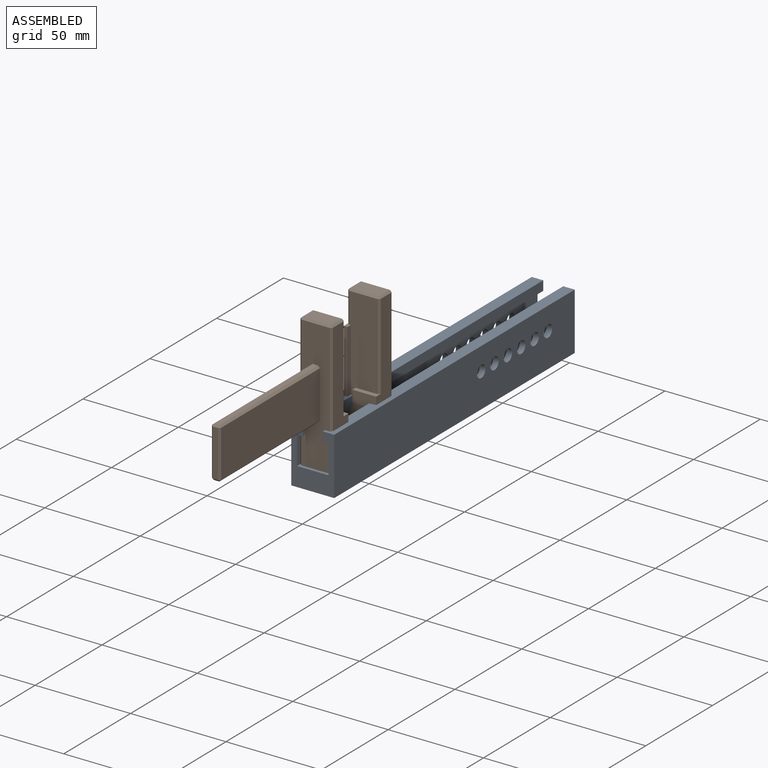
[diagram: assembled view]
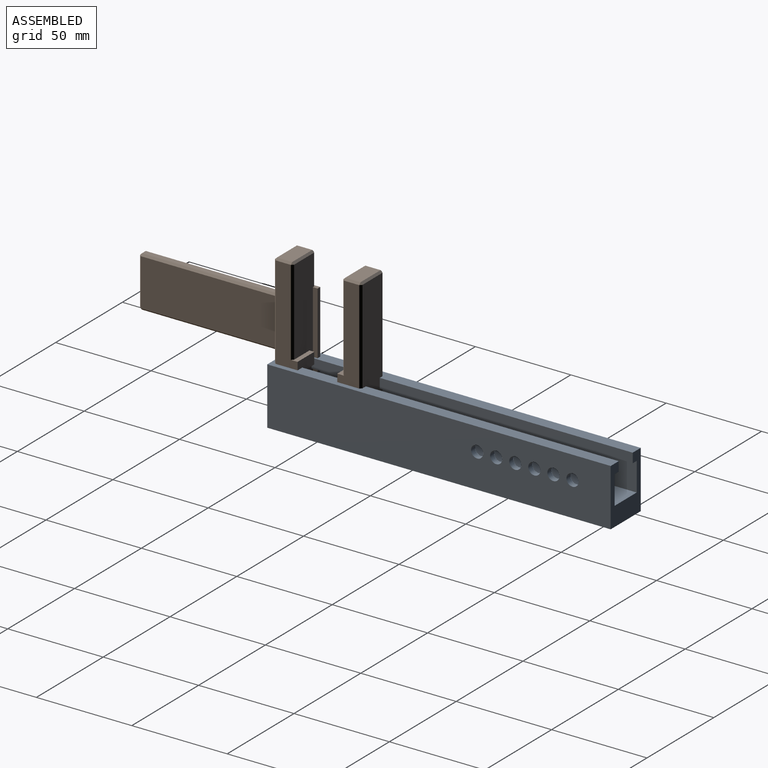
[diagram: assembled view, second angle]
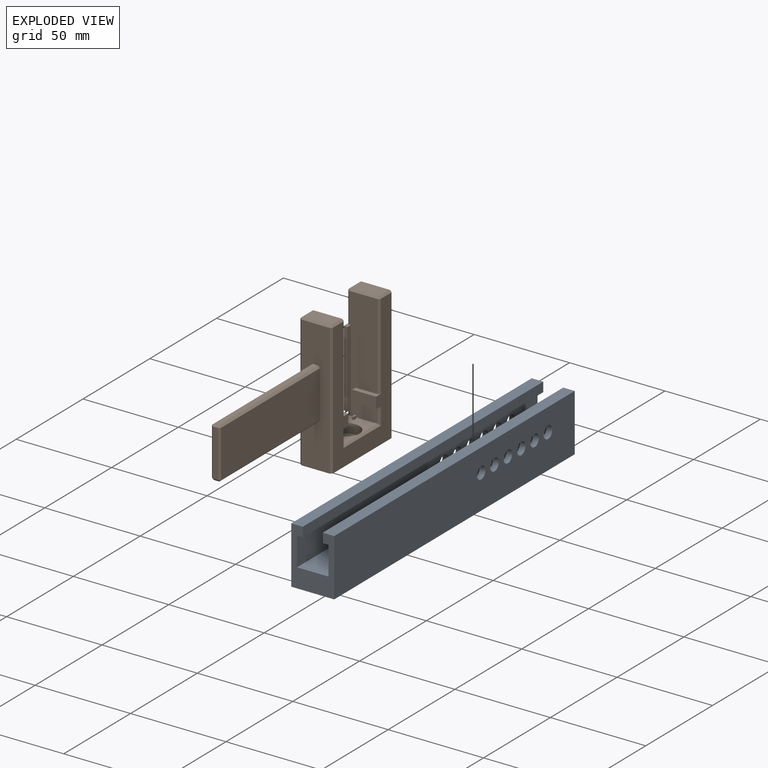
[diagram: exploded view]
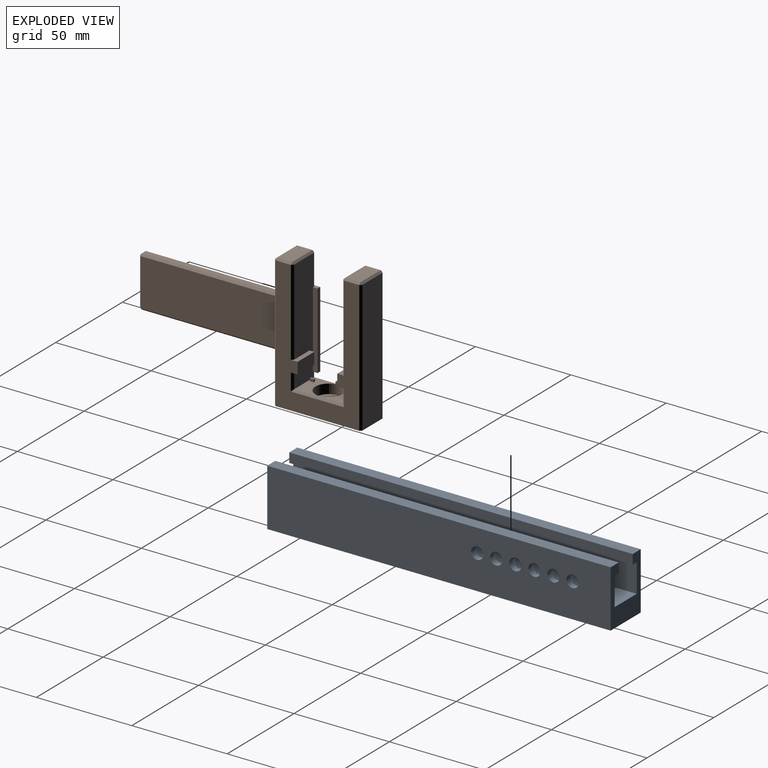
[diagram: exploded view, second angle]
ASSEMBLY  parts=2 mates=2
PART A: 32 faces, bbox 22.5x180x30 mm
  f0: plane 180x16.5mm, normal (0,0,1), area 2812.9mm2, adj f1,f11,f12,f13,f16,f31
  f1: plane 180x15mm, normal (1,0,0), area 2510mm2, adj f0,f2,f12,f13,f23,f24,f25,f26
  f2: plane 180x3mm, normal (0,0,-1), area 540mm2, adj f1,f3,f12,f13
  f3: plane 180x5mm, normal (1,0,0), area 900mm2, adj f2,f4,f12,f13
  f4: plane 180x6mm, normal (0,0,1), area 1080mm2, adj f3,f5,f12,f13
  f5: plane 180x30mm, normal (-1,0,0), area 5210mm2, adj f4,f6,f12,f13,f23,f24,f25,f26
  f6: plane 180x22.5mm, normal (0,0,-1), area 3978.3mm2, adj f5,f7,f12,f13,f14,f29
  f7: plane 180x30mm, normal (1,0,0), area 5210mm2, adj f6,f8,f12,f13,f17,f18,f19,f20
  f8: plane 180x6mm, normal (0,0,1), area 1080mm2, adj f7,f9,f12,f13
  f9: plane 180x5mm, normal (-1,0,0), area 900mm2, adj f8,f10,f12,f13
  f10: plane 180x3mm, normal (0,0,-1), area 540mm2, adj f9,f11,f12,f13
  f11: plane 180x15mm, normal (-1,0,0), area 2510mm2, adj f0,f10,f12,f13,f17,f18,f19,f20
  f12: plane 30x22.5mm, normal (0,1,0), area 375mm2, adj f0,f1,f2,f3,f4,f5,f6,f7
  f13: plane 30x22.5mm, normal (0,-1,0), area 375mm2, adj f0,f1,f2,f3,f4,f5,f6,f7
  f14: cylinder r=3.38mm len=6.76mm, axis (0,0,1), area 77.5mm2, adj f6,f15
  f15: plane 10x10mm, normal (0,0,1), area 42.7mm2, adj f14,f16
  f16: cylinder r=5mm len=10mm, axis (0,0,1), area 199.5mm2, adj f0,f15
  f17: cylinder r=3.17mm len=6.35mm, axis (1,0,0), area 59.8mm2, adj f7,f11
  f18: cylinder r=3.17mm len=6.35mm, axis (1,0,0), area 59.8mm2, adj f7,f11
  f19: cylinder r=3.17mm len=6.35mm, axis (1,0,0), area 59.8mm2, adj f7,f11
  f20: cylinder r=3.17mm len=6.35mm, axis (1,0,0), area 59.8mm2, adj f7,f11
  f21: cylinder r=3.17mm len=6.35mm, axis (1,0,0), area 59.8mm2, adj f7,f11
  f22: cylinder r=3.17mm len=6.35mm, axis (1,0,0), area 59.8mm2, adj f7,f11
  f23: cylinder r=3.17mm len=6.35mm, axis (1,0,0), area 59.8mm2, adj f1,f5
  f24: cylinder r=3.17mm len=6.35mm, axis (1,0,0), area 59.8mm2, adj f1,f5
  f25: cylinder r=3.17mm len=6.35mm, axis (1,0,0), area 59.8mm2, adj f1,f5
  f26: cylinder r=3.17mm len=6.35mm, axis (1,0,0), area 59.8mm2, adj f1,f5
  f27: cylinder r=3.17mm len=6.35mm, axis (1,0,0), area 59.8mm2, adj f1,f5
  f28: cylinder r=3.17mm len=6.35mm, axis (1,0,0), area 59.8mm2, adj f1,f5
  f29: cylinder r=3.38mm len=6.76mm, axis (0,0,1), area 77.5mm2, adj f6,f30
  f30: plane 10x10mm, normal (0,0,1), area 42.7mm2, adj f29,f31
  f31: cylinder r=5mm len=10mm, axis (0,0,1), area 199.5mm2, adj f0,f30
PART B: 92 faces, bbox 17x120.8x70 mm
  f0: plane 25.8x15mm, normal (0,0,1), area 228mm2, adj f4,f5,f31,f33,f35,f36,f37,f38
  f1: plane 69x15mm, normal (0,-1,0), area 908mm2, adj f7,f26,f27,f28,f29,f45,f47,f50
  f2: plane 69x15mm, normal (0,1,0), area 1035mm2, adj f7,f69,f71,f72
  f3: plane 15x8mm, normal (0,0,1), area 120mm2, adj f72,f73,f77,f78
  f4: plane 59x15mm, normal (0,-1,0), area 776mm2, adj f0,f18,f19,f20,f22,f23,f24,f74
  f5: plane 59x15mm, normal (0,1,0), area 776mm2, adj f0,f10,f11,f12,f14,f15,f16,f57
  f6: plane 15x8mm, normal (0,0,1), area 120mm2, adj f60,f61,f65,f66
  f7: plane 45.8x17mm, normal (0,0,-1), area 740.7mm2, adj f1,f2,f8,f9,f62,f68,f69,f71
  f8: plane 69x43.8mm, normal (-1,0,0), area 1639.2mm2, adj f7,f10,f11,f13,f22,f23,f25,f31
  f9: plane 69x43.8mm, normal (1,0,0), area 1396.2mm2, adj f7,f14,f16,f17,f18,f19,f21,f57
  f10: plane 3.5x2mm, normal (0,0,-1), area 5.5mm2, adj f5,f8,f12,f13,f84
  f11: plane 3.5x2mm, normal (0,0,1), area 5.5mm2, adj f5,f8,f12,f13,f59
  f12: plane 40x2.5mm, normal (1,0,0), area 100mm2, adj f5,f10,f11,f13
  f13: plane 40x2mm, normal (0,1,0), area 80mm2, adj f8,f10,f11,f12
  f14: plane 12.5x3.5mm, normal (0,0,-1), area 31.8mm2, adj f5,f9,f15,f17,f85
  f15: plane 6x2.5mm, normal (-1,0,0), area 15mm2, adj f5,f14,f16,f17
  f16: plane 12.5x3.5mm, normal (0,0,1), area 31.8mm2, adj f5,f9,f15,f17,f57
  f17: plane 12.5x6mm, normal (0,1,0), area 75mm2, adj f9,f14,f15,f16
  f18: plane 12.5x3.5mm, normal (0,0,-1), area 31.8mm2, adj f4,f9,f20,f21,f87
  f19: plane 12.5x3.5mm, normal (0,0,1), area 31.8mm2, adj f4,f9,f20,f21,f74
  f20: plane 6x2.5mm, normal (-1,0,0), area 15mm2, adj f4,f18,f19,f21
  f21: plane 12.5x6mm, normal (0,-1,0), area 75mm2, adj f9,f18,f19,f20
  f22: plane 3.5x2mm, normal (0,0,1), area 5.5mm2, adj f4,f8,f24,f25,f80
  f23: plane 3.5x2mm, normal (0,0,-1), area 5.5mm2, adj f4,f8,f24,f25,f82
  f24: plane 40x2.5mm, normal (1,0,0), area 100mm2, adj f4,f22,f23,f25
  f25: plane 40x2mm, normal (0,-1,0), area 80mm2, adj f8,f22,f23,f24
  f26: plane 74x2.83mm, normal (0,0,-1), area 209.5mm2, adj f1,f50,f54,f56
  f27: plane 74x24.71mm, normal (1,0,0), area 1828.7mm2, adj f1,f45,f49,f50
  f28: plane 74x2.83mm, normal (0,0,1), area 209.5mm2, adj f1,f45,f47,f48
  f29: plane 74x24.71mm, normal (-1,0,0), area 1828.7mm2, adj f1,f47,f53,f56
  f30: plane 24.71x2.83mm, normal (0,-1,0), area 69.9mm2, adj f48,f49,f53,f54
  f31: plane 2.5x2mm, normal (0,-1,0), area 3.5mm2, adj f0,f8,f32,f34,f83,f88
  f32: plane 2x1.5mm, normal (1,0,0), area 3mm2, adj f31,f33,f34,f88
  f33: plane 2.5x2mm, normal (0,1,0), area 3.5mm2, adj f0,f8,f32,f34,f81,f88
  f34: plane 2x2mm, normal (0,0,1), area 4mm2, adj f8,f31,f32,f33
  f35: plane 2x1.5mm, normal (-1,0,0), area 3mm2, adj f0,f36,f38,f39
  f36: plane 1.5x1mm, normal (0,-1,0), area 1.5mm2, adj f0,f35,f37,f39
  f37: plane 2x1.5mm, normal (1,0,0), area 3mm2, adj f0,f36,f38,f39
  f38: plane 1.5x1mm, normal (0,1,0), area 1.5mm2, adj f0,f35,f37,f39
  f39: plane 2x1mm, normal (0,0,1), area 2mm2, adj f35,f36,f37,f38
  f40: plane 2x1.5mm, normal (-1,0,0), area 3mm2, adj f0,f41,f43,f44
  f41: plane 1.5x1mm, normal (0,-1,0), area 1.5mm2, adj f0,f40,f42,f44
  f42: plane 2x1.5mm, normal (1,0,0), area 3mm2, adj f0,f41,f43,f44
  f43: plane 1.5x1mm, normal (0,1,0), area 1.5mm2, adj f0,f40,f42,f44
  f44: plane 2x1mm, normal (0,0,1), area 2mm2, adj f40,f41,f42,f43
  f45: plane 74x1mm, normal (0.71,0,0.71), area 104.7mm2, adj f1,f27,f28,f46
  f46: plane 1x1mm, normal (0.58,-0.58,0.58), area 0.9mm2, adj f45,f48,f49
  f47: plane 74x1mm, normal (-0.71,0,0.71), area 104.7mm2, adj f1,f28,f29,f51
  f48: plane 2.83x1mm, normal (0,-0.71,0.71), area 4mm2, adj f28,f30,f46,f51
  f49: plane 24.71x1mm, normal (0.71,-0.71,0), area 34.9mm2, adj f27,f30,f46,f52
  f50: plane 74x1mm, normal (0.71,0,-0.71), area 104.7mm2, adj f1,f26,f27,f52
  f51: plane 1x1mm, normal (-0.58,-0.58,0.58), area 0.9mm2, adj f47,f48,f53
  f52: plane 1x1mm, normal (0.58,-0.58,-0.58), area 0.9mm2, adj f49,f50,f54
  f53: plane 24.71x1mm, normal (-0.71,-0.71,0), area 34.9mm2, adj f29,f30,f51,f55
  f54: plane 2.83x1mm, normal (0,-0.71,-0.71), area 4mm2, adj f26,f30,f52,f55
  f55: plane 1x1mm, normal (-0.58,-0.58,-0.58), area 0.9mm2, adj f53,f54,f56
  f56: plane 74x1mm, normal (-0.71,0,-0.71), area 104.7mm2, adj f1,f26,f29,f55
  f57: plane 45x1mm, normal (0.71,0.71,0), area 63.6mm2, adj f5,f9,f16,f58
  f58: plane 1x1mm, normal (0.58,0.58,0.58), area 0.9mm2, adj f57,f60,f61
  f59: plane 16x1mm, normal (-0.71,0.71,0), area 22.6mm2, adj f5,f8,f11,f63
  f60: plane 15x1mm, normal (0,0.71,0.71), area 21.2mm2, adj f5,f6,f58,f63
  f61: plane 8x1mm, normal (0.71,0,0.71), area 11.3mm2, adj f6,f9,f58,f64
  f62: plane 69x1mm, normal (0.71,-0.71,0), area 97.6mm2, adj f1,f7,f9,f64
  f63: plane 1x1mm, normal (-0.58,0.58,0.58), area 0.9mm2, adj f59,f60,f65
  f64: plane 1x1mm, normal (0.58,-0.58,0.58), area 0.9mm2, adj f61,f62,f66
  f65: plane 8x1mm, normal (-0.71,0,0.71), area 11.3mm2, adj f6,f8,f63,f67
  f66: plane 15x1mm, normal (0,-0.71,0.71), area 21.2mm2, adj f1,f6,f64,f67
  f67: plane 1x1mm, normal (-0.58,-0.58,0.58), area 0.9mm2, adj f65,f66,f68
  f68: plane 69x1mm, normal (-0.71,-0.71,0), area 97.6mm2, adj f1,f7,f8,f67
  f69: plane 69x1mm, normal (0.71,0.71,0), area 97.6mm2, adj f2,f7,f9,f70
  f70: plane 1x1mm, normal (0.58,0.58,0.58), area 0.9mm2, adj f69,f72,f73
  f71: plane 69x1mm, normal (-0.71,0.71,0), area 97.6mm2, adj f2,f7,f8,f75
  f72: plane 15x1mm, normal (0,0.71,0.71), area 21.2mm2, adj f2,f3,f70,f75
  f73: plane 8x1mm, normal (0.71,0,0.71), area 11.3mm2, adj f3,f9,f70,f76
  f74: plane 45x1mm, normal (0.71,-0.71,0), area 63.6mm2, adj f4,f9,f19,f76
  f75: plane 1x1mm, normal (-0.58,0.58,0.58), area 0.9mm2, adj f71,f72,f77
  f76: plane 1x1mm, normal (0.58,-0.58,0.58), area 0.9mm2, adj f73,f74,f78
  f77: plane 8x1mm, normal (-0.71,0,0.71), area 11.3mm2, adj f3,f8,f75,f79
  f78: plane 15x1mm, normal (0,-0.71,0.71), area 21.2mm2, adj f3,f4,f76,f79
  f79: plane 1x1mm, normal (-0.58,-0.58,0.58), area 0.9mm2, adj f77,f78,f80
  f80: plane 16x1mm, normal (-0.71,-0.71,0), area 22.6mm2, adj f4,f8,f22,f79
  f81: plane 12.9x1mm, normal (-0.71,0,0.71), area 17.5mm2, adj f0,f8,f33,f82
  f82: plane 4x1mm, normal (-0.71,-0.71,0), area 4.9mm2, adj f4,f8,f23,f81
  f83: plane 12.9x1mm, normal (-0.71,0,0.71), area 17.5mm2, adj f0,f8,f31,f84
  f84: plane 4x1mm, normal (-0.71,0.71,0), area 4.9mm2, adj f5,f8,f10,f83
  f85: plane 9x1mm, normal (0.71,0.71,0), area 12mm2, adj f5,f9,f14,f86
  f86: plane 27.8x1mm, normal (0.71,0,0.71), area 37.9mm2, adj f0,f9,f85,f87
  f87: plane 9x1mm, normal (0.71,-0.71,0), area 12mm2, adj f4,f9,f18,f86
  f88: plane 2x0.5mm, normal (0,0,-1), area 1mm2, adj f31,f32,f33,f91
  f89: cylinder r=3.38mm len=6.76mm, axis (0,0,1), area 106.1mm2, adj f7,f90
  f90: plane 14x14mm, normal (0,0,1), area 118.1mm2, adj f89,f91
  f91: cylinder r=7mm len=14mm, axis (0,0,1), area 219.9mm2, adj f0,f88,f90
PLACE A t=(-51.15,78.04,7.2)mm fixed
PLACE B rot(axis=(0,-1,0),0deg) t=(-42.4,12.59,42.2)mm
MATE planar B.f89 <-> A.f0  axis (0,0,-1) through (-50.9,12.59,7.2)mm
MATE planar B.f8 <-> A.f1  axis (-1,0,0) through (-59.4,12.59,36.79)mm
